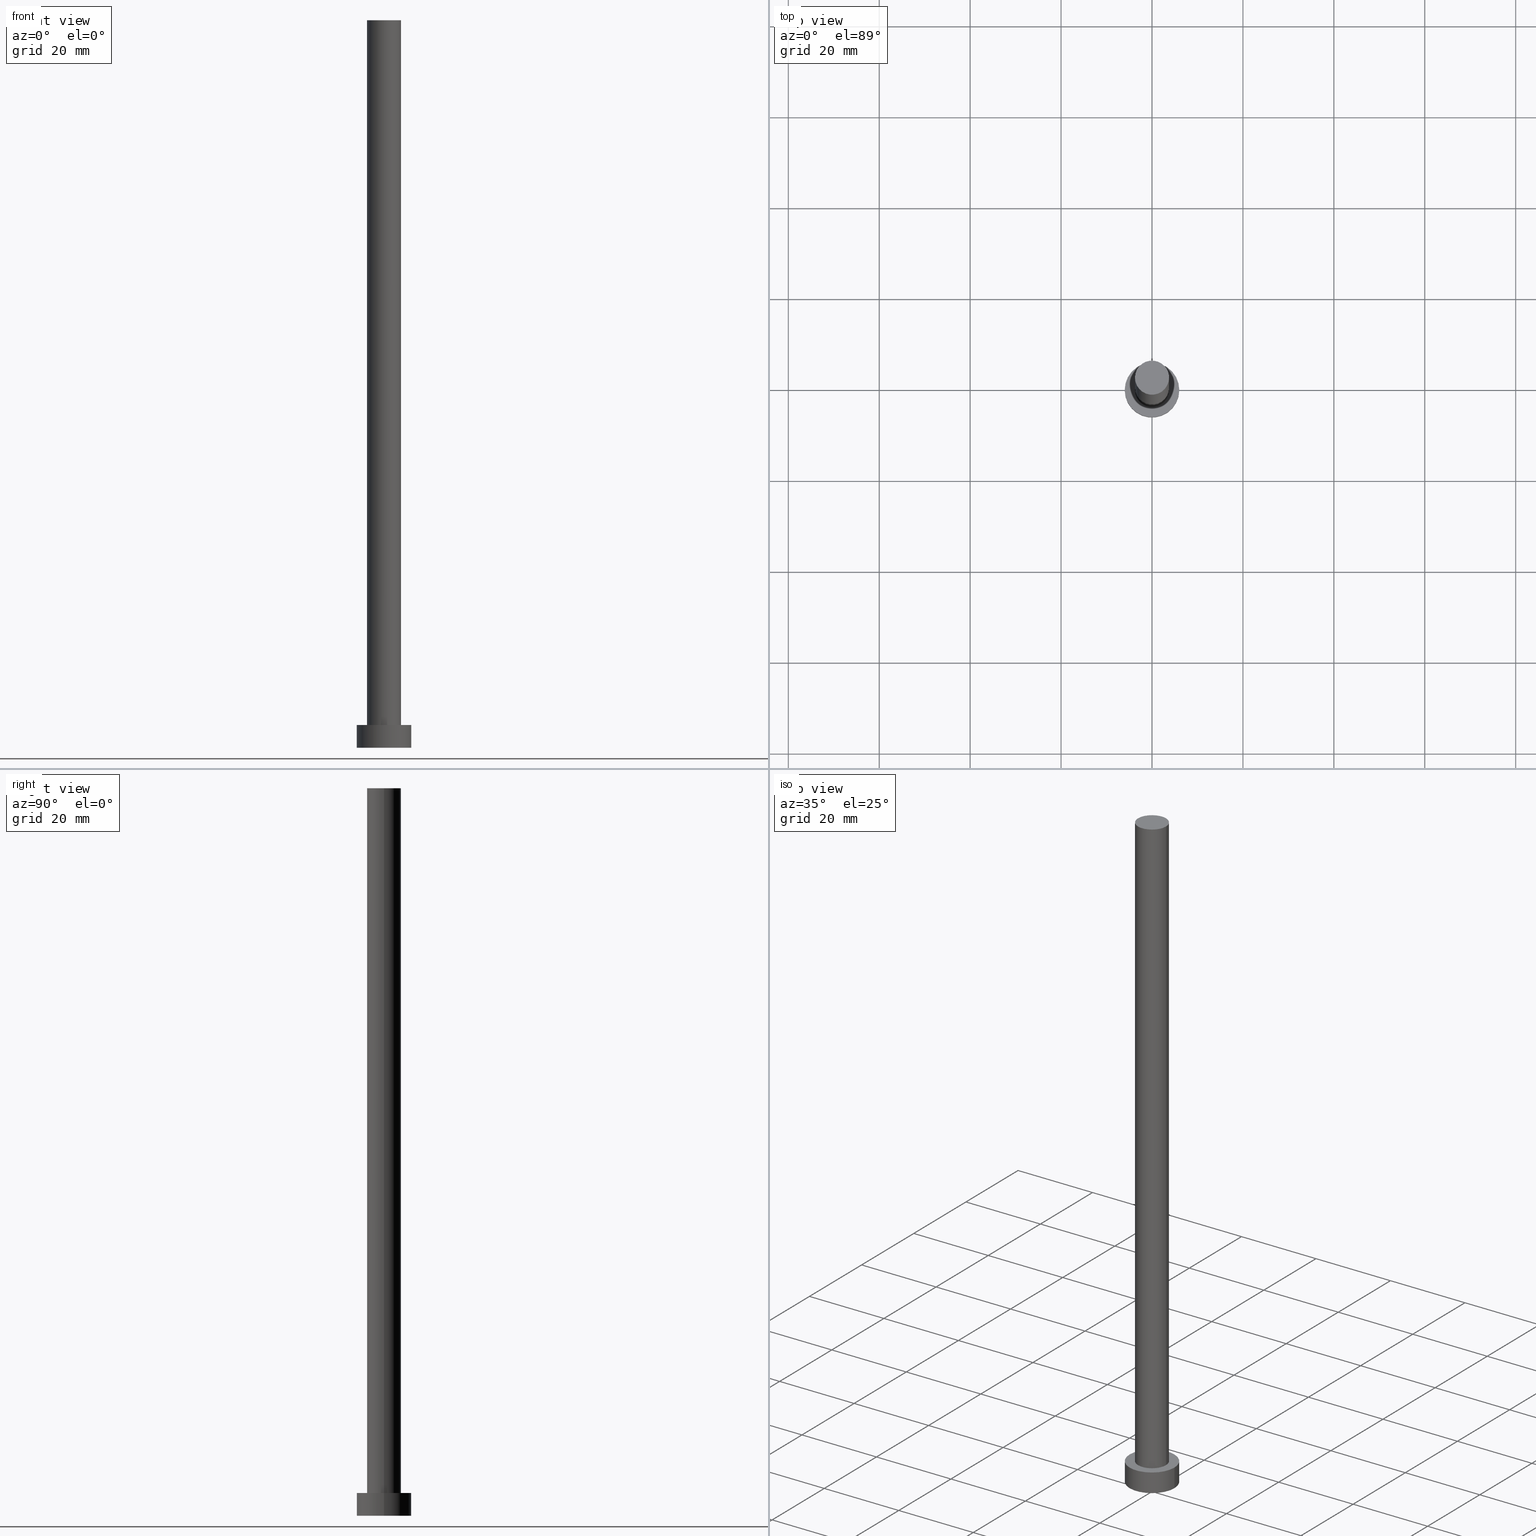
[diagram: canonical four-view strip — front | top / right | iso, engineering-drawing reading convention]
A machine part, canonical four-view strip (front | top / right | iso — engineering-drawing reading convention). The complete STEP part file that produces these views, byte-faithful:
ISO-10303-21;
HEADER;
FILE_DESCRIPTION (( 'STEP AP203' ),
    '1' );
FILE_NAME ('c519.STEP',
    '2023-02-13T13:34:51',
    ( '' ),
    ( '' ),
    'SwSTEP 2.0',
    'SolidWorks 2019',
    '' );
FILE_SCHEMA (( 'CONFIG_CONTROL_DESIGN' ));
ENDSEC;

DATA;
#1 = APPROVAL_ROLE ( '' ) ;
#2 = EDGE_CURVE ( 'NONE', #14, #13, #255, .T. ) ;
#3 = DIRECTION ( 'NONE',  ( -0.000000000000000000, -0.000000000000000000, -1.000000000000000000 ) ) ;
#4 = CARTESIAN_POINT ( 'NONE',  ( 0.000000000000000000, 0.000000000000000000, 0.000000000000000000 ) ) ;
#5 = APPROVAL_STATUS ( 'not_yet_approved' ) ;
#6 = CYLINDRICAL_SURFACE ( 'NONE', #100, 3.750000000000000000 ) ;
#7 = DIRECTION ( 'NONE',  ( -0.000000000000000000, -0.000000000000000000, -1.000000000000000000 ) ) ;
#8 = AXIS2_PLACEMENT_3D ( 'NONE', #82, #106, #244 ) ;
#9 = DIRECTION ( 'NONE',  ( 0.000000000000000000, 0.000000000000000000, 1.000000000000000000 ) ) ;
#10 = DIRECTION ( 'NONE',  ( 1.000000000000000000, 0.000000000000000000, 0.000000000000000000 ) ) ;
#11 = ORIENTED_EDGE ( 'NONE', *, *, #77, .F. ) ;
#12 = VECTOR ( 'NONE', #205, 1000.000000000000000 ) ;
#13 = VERTEX_POINT ( 'NONE', #117 ) ;
#14 = VERTEX_POINT ( 'NONE', #198 ) ;
#15 = PERSON_AND_ORGANIZATION_ROLE ( 'classification_officer' ) ;
#16 = PERSON_AND_ORGANIZATION_ROLE ( 'design_supplier' ) ;
#17 = DIRECTION ( 'NONE',  ( -1.000000000000000000, 0.000000000000000000, 0.000000000000000000 ) ) ;
#18 = DIRECTION ( 'NONE',  ( 1.000000000000000000, 0.000000000000000000, 0.000000000000000000 ) ) ;
#19 = UNCERTAINTY_MEASURE_WITH_UNIT (LENGTH_MEASURE( 1.000000000000000082E-05 ), #211, 'distance_accuracy_value', 'NONE');
#20 = APPROVAL ( #93, 'NEUR�EN�' ) ;
#21 = AXIS2_PLACEMENT_3D ( 'NONE', #109, #3, #188 ) ;
#22 = APPROVAL_STATUS ( 'not_yet_approved' ) ;
#23 = CARTESIAN_POINT ( 'NONE',  ( 6.000000000000000888, 7.347880794884120722E-16, 5.000000000000000000 ) ) ;
#24 = DATE_TIME_ROLE ( 'creation_date' ) ;
#25 = FACE_OUTER_BOUND ( 'NONE', #231, .T. ) ;
#26 = CYLINDRICAL_SURFACE ( 'NONE', #62, 3.750000000000000000 ) ;
#27 = DIRECTION ( 'NONE',  ( -1.000000000000000000, 0.000000000000000000, 0.000000000000000000 ) ) ;
#28 = FACE_OUTER_BOUND ( 'NONE', #71, .T. ) ;
#29 = VECTOR ( 'NONE', #80, 1000.000000000000000 ) ;
#30 = ORIENTED_EDGE ( 'NONE', *, *, #55, .F. ) ;
#31 = ORIENTED_EDGE ( 'NONE', *, *, #124, .F. ) ;
#32 = EDGE_LOOP ( 'NONE', ( #213, #135, #177, #67 ) ) ;
#33 = EDGE_CURVE ( 'NONE', #73, #91, #158, .T. ) ;
#34 = ADVANCED_FACE ( 'NONE', ( #95 ), #196, .T. ) ;
#35 = ORIENTED_EDGE ( 'NONE', *, *, #56, .T. ) ;
#36 = DIRECTION ( 'NONE',  ( -0.000000000000000000, -0.000000000000000000, -1.000000000000000000 ) ) ;
#37 = DIRECTION ( 'NONE',  ( 1.000000000000000000, 0.000000000000000000, 0.000000000000000000 ) ) ;
#38 = LOCAL_TIME ( 14, 34, 51.00000000000000000, #194 ) ;
#39 = ORGANIZATION ( 'NEUR�EN�', 'NEUR�EN�', '' ) ;
#40 = EDGE_CURVE ( 'NONE', #13, #14, #254, .T. ) ;
#41 = FACE_OUTER_BOUND ( 'NONE', #131, .T. ) ;
#42 = LOCAL_TIME ( 14, 34, 51.00000000000000000, #209 ) ;
#43 = PERSON_AND_ORGANIZATION ( #212, #39 ) ;
#44 = PLANE ( 'NONE',  #8 ) ;
#45 = CARTESIAN_POINT ( 'NONE',  ( -3.750000000000000000, 0.000000000000000000, 5.000000000000000000 ) ) ;
#46 = CALENDAR_DATE ( 2023, 13, 2 ) ;
#47 = DIRECTION ( 'NONE',  ( 1.000000000000000000, 0.000000000000000000, -0.000000000000000000 ) ) ;
#48 = ORIENTED_EDGE ( 'NONE', *, *, #2, .F. ) ;
#49 = PERSON_AND_ORGANIZATION ( #212, #39 ) ;
#50 = EDGE_CURVE ( 'NONE', #13, #153, #137, .T. ) ;
#51 = ORIENTED_EDGE ( 'NONE', *, *, #2, .T. ) ;
#52 = DIRECTION ( 'NONE',  ( 0.000000000000000000, 0.000000000000000000, 1.000000000000000000 ) ) ;
#53 = ORIENTED_EDGE ( 'NONE', *, *, #138, .F. ) ;
#54 = AXIS2_PLACEMENT_3D ( 'NONE', #129, #190, #10 ) ;
#55 = EDGE_CURVE ( 'NONE', #151, #73, #94, .T. ) ;
#56 = EDGE_CURVE ( 'NONE', #89, #153, #202, .T. ) ;
#57 = AXIS2_PLACEMENT_3D ( 'NONE', #102, #186, #238 ) ;
#58 = CARTESIAN_POINT ( 'NONE',  ( -6.000000000000000888, 0.000000000000000000, 0.000000000000000000 ) ) ;
#59 = DIRECTION ( 'NONE',  ( 0.000000000000000000, 0.000000000000000000, 1.000000000000000000 ) ) ;
#60 = CC_DESIGN_SECURITY_CLASSIFICATION ( #197, ( #78 ) ) ;
#61 = DIRECTION ( 'NONE',  ( -1.000000000000000000, 0.000000000000000000, 0.000000000000000000 ) ) ;
#62 = AXIS2_PLACEMENT_3D ( 'NONE', #220, #7, #61 ) ;
#63 =( NAMED_UNIT ( * ) SI_UNIT ( $, .STERADIAN. ) SOLID_ANGLE_UNIT ( ) );
#64 = COORDINATED_UNIVERSAL_TIME_OFFSET ( 1, 0, .AHEAD. ) ;
#65 = CARTESIAN_POINT ( 'NONE',  ( 0.000000000000000000, 0.000000000000000000, 5.000000000000000000 ) ) ;
#66 = LOCAL_TIME ( 14, 34, 51.00000000000000000, #185 ) ;
#67 = ORIENTED_EDGE ( 'NONE', *, *, #142, .F. ) ;
#68 = APPROVAL_ROLE ( '' ) ;
#69 = ORIENTED_EDGE ( 'NONE', *, *, #193, .T. ) ;
#70 = DIRECTION ( 'NONE',  ( -0.000000000000000000, -0.000000000000000000, -1.000000000000000000 ) ) ;
#71 = EDGE_LOOP ( 'NONE', ( #69, #248 ) ) ;
#72 = CIRCLE ( 'NONE', #143, 6.000000000000000888 ) ;
#73 = VERTEX_POINT ( 'NONE', #242 ) ;
#74 = CIRCLE ( 'NONE', #221, 6.000000000000000888 ) ;
#75 = CC_DESIGN_PERSON_AND_ORGANIZATION_ASSIGNMENT ( #43, #206, ( #122 ) ) ;
#76 = CC_DESIGN_APPROVAL ( #173, ( #122 ) ) ;
#77 = EDGE_CURVE ( 'NONE', #252, #91, #146, .T. ) ;
#78 = PRODUCT_DEFINITION_FORMATION_WITH_SPECIFIED_SOURCE ( 'LIBOVOLN�', '', #170, .NOT_KNOWN. ) ;
#79 =( GEOMETRIC_REPRESENTATION_CONTEXT ( 3 ) GLOBAL_UNCERTAINTY_ASSIGNED_CONTEXT ( ( #19 ) ) GLOBAL_UNIT_ASSIGNED_CONTEXT ( ( #211, #149, #63 ) ) REPRESENTATION_CONTEXT ( 'NONE', 'WORKASPACE' ) );
#80 = DIRECTION ( 'NONE',  ( -0.000000000000000000, -0.000000000000000000, -1.000000000000000000 ) ) ;
#81 = DATE_AND_TIME ( #243, #66 ) ;
#82 = CARTESIAN_POINT ( 'NONE',  ( 0.000000000000000000, 0.000000000000000000, 0.000000000000000000 ) ) ;
#83 = CARTESIAN_POINT ( 'NONE',  ( 3.750000000000000000, 4.592425496802573972E-16, 5.000000000000000000 ) ) ;
#84 = DATE_AND_TIME ( #46, #150 ) ;
#85 = DIRECTION ( 'NONE',  ( 0.000000000000000000, 0.000000000000000000, 1.000000000000000000 ) ) ;
#86 = CARTESIAN_POINT ( 'NONE',  ( 0.000000000000000000, 0.000000000000000000, 5.000000000000000000 ) ) ;
#87 = ADVANCED_FACE ( 'NONE', ( #224 ), #26, .T. ) ;
#88 = APPLICATION_PROTOCOL_DEFINITION ( 'international standard', 'config_control_design', 1994, #111 ) ;
#89 = VERTEX_POINT ( 'NONE', #45 ) ;
#90 = APPROVAL_DATE_TIME ( #133, #20 ) ;
#91 = VERTEX_POINT ( 'NONE', #58 ) ;
#92 = COORDINATED_UNIVERSAL_TIME_OFFSET ( 1, 0, .AHEAD. ) ;
#93 = APPROVAL_STATUS ( 'not_yet_approved' ) ;
#94 = LINE ( 'NONE', #253, #203 ) ;
#95 = FACE_OUTER_BOUND ( 'NONE', #249, .T. ) ;
#96 = VECTOR ( 'NONE', #36, 1000.000000000000000 ) ;
#97 = CLOSED_SHELL ( 'NONE', ( #87, #34, #155, #200, #174, #226, #201 ) ) ;
#98 = APPLICATION_CONTEXT ( 'configuration controlled 3d designs of mechanical parts and assemblies' ) ;
#99 = ADVANCED_BREP_SHAPE_REPRESENTATION ( 'c519', ( #237, #184 ), #79 ) ;
#100 = AXIS2_PLACEMENT_3D ( 'NONE', #108, #130, #27 ) ;
#101 = APPROVAL_DATE_TIME ( #187, #173 ) ;
#102 = CARTESIAN_POINT ( 'NONE',  ( 0.000000000000000000, 0.000000000000000000, 5.000000000000000000 ) ) ;
#103 = MECHANICAL_CONTEXT ( 'NONE', #111, 'mechanical' ) ;
#104 = CC_DESIGN_APPROVAL ( #154, ( #78 ) ) ;
#105 = PERSON_AND_ORGANIZATION ( #212, #39 ) ;
#106 = DIRECTION ( 'NONE',  ( 0.000000000000000000, 0.000000000000000000, 1.000000000000000000 ) ) ;
#107 = DIRECTION ( 'NONE',  ( 1.000000000000000000, 0.000000000000000000, 0.000000000000000000 ) ) ;
#108 = CARTESIAN_POINT ( 'NONE',  ( 0.000000000000000000, 0.000000000000000000, 160.0000000000000000 ) ) ;
#109 = CARTESIAN_POINT ( 'NONE',  ( 0.000000000000000000, 0.000000000000000000, 5.000000000000000000 ) ) ;
#110 = AXIS2_PLACEMENT_3D ( 'NONE', #176, #180, #18 ) ;
#111 = APPLICATION_CONTEXT ( 'configuration controlled 3d designs of mechanical parts and assemblies' ) ;
#112 = ORIENTED_EDGE ( 'NONE', *, *, #50, .F. ) ;
#113 = EDGE_LOOP ( 'NONE', ( #51, #132 ) ) ;
#114 = CC_DESIGN_PERSON_AND_ORGANIZATION_ASSIGNMENT ( #105, #16, ( #78 ) ) ;
#115 = ORIENTED_EDGE ( 'NONE', *, *, #219, .F. ) ;
#116 = DIRECTION ( 'NONE',  ( 0.000000000000000000, 0.000000000000000000, 1.000000000000000000 ) ) ;
#117 = CARTESIAN_POINT ( 'NONE',  ( 3.750000000000000000, 4.592425496802573972E-16, 160.0000000000000000 ) ) ;
#118 = APPROVAL_PERSON_ORGANIZATION ( #247, #20, #68 ) ;
#119 = AXIS2_PLACEMENT_3D ( 'NONE', #4, #121, #107 ) ;
#120 = CIRCLE ( 'NONE', #119, 6.000000000000000888 ) ;
#121 = DIRECTION ( 'NONE',  ( 0.000000000000000000, 0.000000000000000000, 1.000000000000000000 ) ) ;
#122 = PRODUCT_DEFINITION ( 'NEZN�M�', '', #78, #140 ) ;
#123 = CC_DESIGN_APPROVAL ( #20, ( #197 ) ) ;
#124 = EDGE_CURVE ( 'NONE', #151, #252, #72, .T. ) ;
#125 = APPLICATION_PROTOCOL_DEFINITION ( 'international standard', 'config_control_design', 1994, #98 ) ;
#126 = CARTESIAN_POINT ( 'NONE',  ( 0.000000000000000000, 0.000000000000000000, 5.000000000000000000 ) ) ;
#127 = CYLINDRICAL_SURFACE ( 'NONE', #21, 6.000000000000000888 ) ;
#128 = APPROVAL_DATE_TIME ( #84, #154 ) ;
#129 = CARTESIAN_POINT ( 'NONE',  ( 0.000000000000000000, 0.000000000000000000, 5.000000000000000000 ) ) ;
#130 = DIRECTION ( 'NONE',  ( -0.000000000000000000, -0.000000000000000000, -1.000000000000000000 ) ) ;
#131 = EDGE_LOOP ( 'NONE', ( #30, #178, #192, #191 ) ) ;
#132 = ORIENTED_EDGE ( 'NONE', *, *, #40, .T. ) ;
#133 = DATE_AND_TIME ( #250, #38 ) ;
#134 = ORIENTED_EDGE ( 'NONE', *, *, #55, .T. ) ;
#135 = ORIENTED_EDGE ( 'NONE', *, *, #50, .T. ) ;
#136 = DATE_AND_TIME ( #195, #229 ) ;
#137 = LINE ( 'NONE', #216, #96 ) ;
#138 = EDGE_CURVE ( 'NONE', #91, #73, #120, .T. ) ;
#139 = CARTESIAN_POINT ( 'NONE',  ( 0.000000000000000000, 0.000000000000000000, 160.0000000000000000 ) ) ;
#140 = DESIGN_CONTEXT ( 'detailed design', #98, 'design' ) ;
#141 = DIRECTION ( 'NONE',  ( 0.000000000000000000, 0.000000000000000000, 1.000000000000000000 ) ) ;
#142 = EDGE_CURVE ( 'NONE', #14, #89, #160, .T. ) ;
#143 = AXIS2_PLACEMENT_3D ( 'NONE', #86, #141, #208 ) ;
#144 = PERSON_AND_ORGANIZATION_ROLE ( 'creator' ) ;
#145 = PLANE ( 'NONE',  #181 ) ;
#146 = LINE ( 'NONE', #189, #29 ) ;
#147 = APPROVAL_ROLE ( '' ) ;
#148 = FACE_OUTER_BOUND ( 'NONE', #113, .T. ) ;
#149 =( NAMED_UNIT ( * ) PLANE_ANGLE_UNIT ( ) SI_UNIT ( $, .RADIAN. ) );
#150 = LOCAL_TIME ( 14, 34, 51.00000000000000000, #64 ) ;
#151 = VERTEX_POINT ( 'NONE', #23 ) ;
#152 = SHAPE_DEFINITION_REPRESENTATION ( #251, #99 ) ;
#153 = VERTEX_POINT ( 'NONE', #83 ) ;
#154 = APPROVAL ( #5, 'NEUR�EN�' ) ;
#155 = ADVANCED_FACE ( 'NONE', ( #41 ), #127, .T. ) ;
#156 = CARTESIAN_POINT ( 'NONE',  ( 0.000000000000000000, 0.000000000000000000, 5.000000000000000000 ) ) ;
#157 = DIRECTION ( 'NONE',  ( -0.000000000000000000, -0.000000000000000000, -1.000000000000000000 ) ) ;
#158 = CIRCLE ( 'NONE', #110, 6.000000000000000888 ) ;
#159 = APPROVAL_PERSON_ORGANIZATION ( #165, #173, #1 ) ;
#160 = LINE ( 'NONE', #163, #12 ) ;
#161 = PERSON_AND_ORGANIZATION ( #212, #39 ) ;
#162 = DIRECTION ( 'NONE',  ( 1.000000000000000000, 0.000000000000000000, 0.000000000000000000 ) ) ;
#163 = CARTESIAN_POINT ( 'NONE',  ( -3.750000000000000000, 0.000000000000000000, 160.0000000000000000 ) ) ;
#164 = CARTESIAN_POINT ( 'NONE',  ( -6.000000000000000888, 0.000000000000000000, 5.000000000000000000 ) ) ;
#165 = PERSON_AND_ORGANIZATION ( #212, #39 ) ;
#166 = PLANE ( 'NONE',  #215 ) ;
#167 = CC_DESIGN_DATE_AND_TIME_ASSIGNMENT ( #136, #175, ( #197 ) ) ;
#168 = ORIENTED_EDGE ( 'NONE', *, *, #33, .F. ) ;
#169 = CIRCLE ( 'NONE', #54, 3.750000000000000000 ) ;
#170 = PRODUCT ( 'c519', 'c519', '', ( #103 ) ) ;
#171 = SECURITY_CLASSIFICATION_LEVEL ( 'unclassified' ) ;
#172 = EDGE_LOOP ( 'NONE', ( #53, #168 ) ) ;
#173 = APPROVAL ( #22, 'NEUR�EN�' ) ;
#174 = ADVANCED_FACE ( 'NONE', ( #228 ), #44, .F. ) ;
#175 = DATE_TIME_ROLE ( 'classification_date' ) ;
#176 = CARTESIAN_POINT ( 'NONE',  ( 0.000000000000000000, 0.000000000000000000, 0.000000000000000000 ) ) ;
#177 = ORIENTED_EDGE ( 'NONE', *, *, #219, .T. ) ;
#178 = ORIENTED_EDGE ( 'NONE', *, *, #193, .F. ) ;
#179 = AXIS2_PLACEMENT_3D ( 'NONE', #139, #116, #37 ) ;
#180 = DIRECTION ( 'NONE',  ( 0.000000000000000000, 0.000000000000000000, 1.000000000000000000 ) ) ;
#181 = AXIS2_PLACEMENT_3D ( 'NONE', #210, #207, #223 ) ;
#182 = AXIS2_PLACEMENT_3D ( 'NONE', #233, #52, #234 ) ;
#183 = APPROVAL_PERSON_ORGANIZATION ( #227, #154, #147 ) ;
#184 = AXIS2_PLACEMENT_3D ( 'NONE', #245, #9, #225 ) ;
#185 = COORDINATED_UNIVERSAL_TIME_OFFSET ( 1, 0, .AHEAD. ) ;
#186 = DIRECTION ( 'NONE',  ( 0.000000000000000000, 0.000000000000000000, 1.000000000000000000 ) ) ;
#187 = DATE_AND_TIME ( #239, #42 ) ;
#188 = DIRECTION ( 'NONE',  ( -1.000000000000000000, 0.000000000000000000, 0.000000000000000000 ) ) ;
#189 = CARTESIAN_POINT ( 'NONE',  ( -6.000000000000000888, 0.000000000000000000, 5.000000000000000000 ) ) ;
#190 = DIRECTION ( 'NONE',  ( 0.000000000000000000, 0.000000000000000000, 1.000000000000000000 ) ) ;
#191 = ORIENTED_EDGE ( 'NONE', *, *, #138, .T. ) ;
#192 = ORIENTED_EDGE ( 'NONE', *, *, #77, .T. ) ;
#193 = EDGE_CURVE ( 'NONE', #252, #151, #74, .T. ) ;
#194 = COORDINATED_UNIVERSAL_TIME_OFFSET ( 1, 0, .AHEAD. ) ;
#195 = CALENDAR_DATE ( 2023, 13, 2 ) ;
#196 = CYLINDRICAL_SURFACE ( 'NONE', #235, 6.000000000000000888 ) ;
#197 = SECURITY_CLASSIFICATION ( '', '', #171 ) ;
#198 = CARTESIAN_POINT ( 'NONE',  ( -3.750000000000000000, 0.000000000000000000, 160.0000000000000000 ) ) ;
#199 = PRODUCT_RELATED_PRODUCT_CATEGORY ( 'detail', '', ( #170 ) ) ;
#200 = ADVANCED_FACE ( 'NONE', ( #241, #28 ), #166, .T. ) ;
#201 = ADVANCED_FACE ( 'NONE', ( #148 ), #145, .T. ) ;
#202 = CIRCLE ( 'NONE', #57, 3.750000000000000000 ) ;
#203 = VECTOR ( 'NONE', #157, 1000.000000000000000 ) ;
#204 = PERSON_AND_ORGANIZATION_ROLE ( 'design_owner' ) ;
#205 = DIRECTION ( 'NONE',  ( -0.000000000000000000, -0.000000000000000000, -1.000000000000000000 ) ) ;
#206 = PERSON_AND_ORGANIZATION_ROLE ( 'creator' ) ;
#207 = DIRECTION ( 'NONE',  ( 0.000000000000000000, 0.000000000000000000, 1.000000000000000000 ) ) ;
#208 = DIRECTION ( 'NONE',  ( 1.000000000000000000, 0.000000000000000000, 0.000000000000000000 ) ) ;
#209 = COORDINATED_UNIVERSAL_TIME_OFFSET ( 1, 0, .AHEAD. ) ;
#210 = CARTESIAN_POINT ( 'NONE',  ( 0.000000000000000000, 0.000000000000000000, 160.0000000000000000 ) ) ;
#211 =( LENGTH_UNIT ( ) NAMED_UNIT ( * ) SI_UNIT ( .MILLI., .METRE. ) );
#212 = PERSON ( 'NEUR�EN�', 'NEUR�EN�', 'NEUR�EN�', ('NEUR�EN�'), ('NEUR�EN�'), ('NEUR�EN�') ) ;
#213 = ORIENTED_EDGE ( 'NONE', *, *, #40, .F. ) ;
#214 = EDGE_LOOP ( 'NONE', ( #246, #115 ) ) ;
#215 = AXIS2_PLACEMENT_3D ( 'NONE', #65, #59, #47 ) ;
#216 = CARTESIAN_POINT ( 'NONE',  ( 3.750000000000000000, 4.592425496802573972E-16, 160.0000000000000000 ) ) ;
#217 = ORIENTED_EDGE ( 'NONE', *, *, #33, .T. ) ;
#218 = CC_DESIGN_PERSON_AND_ORGANIZATION_ASSIGNMENT ( #222, #204, ( #170 ) ) ;
#219 = EDGE_CURVE ( 'NONE', #153, #89, #169, .T. ) ;
#220 = CARTESIAN_POINT ( 'NONE',  ( 0.000000000000000000, 0.000000000000000000, 160.0000000000000000 ) ) ;
#221 = AXIS2_PLACEMENT_3D ( 'NONE', #126, #85, #162 ) ;
#222 = PERSON_AND_ORGANIZATION ( #212, #39 ) ;
#223 = DIRECTION ( 'NONE',  ( 1.000000000000000000, 0.000000000000000000, -0.000000000000000000 ) ) ;
#224 = FACE_OUTER_BOUND ( 'NONE', #32, .T. ) ;
#225 = DIRECTION ( 'NONE',  ( 1.000000000000000000, 0.000000000000000000, 0.000000000000000000 ) ) ;
#226 = ADVANCED_FACE ( 'NONE', ( #25 ), #6, .T. ) ;
#227 = PERSON_AND_ORGANIZATION ( #212, #39 ) ;
#228 = FACE_OUTER_BOUND ( 'NONE', #172, .T. ) ;
#229 = LOCAL_TIME ( 14, 34, 51.00000000000000000, #92 ) ;
#230 = ORIENTED_EDGE ( 'NONE', *, *, #142, .T. ) ;
#231 = EDGE_LOOP ( 'NONE', ( #112, #48, #230, #35 ) ) ;
#232 = CC_DESIGN_PERSON_AND_ORGANIZATION_ASSIGNMENT ( #49, #15, ( #197 ) ) ;
#233 = CARTESIAN_POINT ( 'NONE',  ( 0.000000000000000000, 0.000000000000000000, 160.0000000000000000 ) ) ;
#234 = DIRECTION ( 'NONE',  ( 1.000000000000000000, 0.000000000000000000, 0.000000000000000000 ) ) ;
#235 = AXIS2_PLACEMENT_3D ( 'NONE', #156, #70, #17 ) ;
#236 = CC_DESIGN_PERSON_AND_ORGANIZATION_ASSIGNMENT ( #161, #144, ( #78 ) ) ;
#237 = MANIFOLD_SOLID_BREP ( 'P�idat vysunut�m3', #97 ) ;
#238 = DIRECTION ( 'NONE',  ( 1.000000000000000000, 0.000000000000000000, 0.000000000000000000 ) ) ;
#239 = CALENDAR_DATE ( 2023, 13, 2 ) ;
#240 = CC_DESIGN_DATE_AND_TIME_ASSIGNMENT ( #81, #24, ( #122 ) ) ;
#241 = FACE_BOUND ( 'NONE', #214, .T. ) ;
#242 = CARTESIAN_POINT ( 'NONE',  ( 6.000000000000000888, 7.347880794884120722E-16, 0.000000000000000000 ) ) ;
#243 = CALENDAR_DATE ( 2023, 13, 2 ) ;
#244 = DIRECTION ( 'NONE',  ( 1.000000000000000000, 0.000000000000000000, -0.000000000000000000 ) ) ;
#245 = CARTESIAN_POINT ( 'NONE',  ( 0.000000000000000000, 0.000000000000000000, 0.000000000000000000 ) ) ;
#246 = ORIENTED_EDGE ( 'NONE', *, *, #56, .F. ) ;
#247 = PERSON_AND_ORGANIZATION ( #212, #39 ) ;
#248 = ORIENTED_EDGE ( 'NONE', *, *, #124, .T. ) ;
#249 = EDGE_LOOP ( 'NONE', ( #31, #134, #217, #11 ) ) ;
#250 = CALENDAR_DATE ( 2023, 13, 2 ) ;
#251 = PRODUCT_DEFINITION_SHAPE ( 'NONE', 'NONE',  #122 ) ;
#252 = VERTEX_POINT ( 'NONE', #164 ) ;
#253 = CARTESIAN_POINT ( 'NONE',  ( 6.000000000000000888, 7.347880794884120722E-16, 5.000000000000000000 ) ) ;
#254 = CIRCLE ( 'NONE', #182, 3.750000000000000000 ) ;
#255 = CIRCLE ( 'NONE', #179, 3.750000000000000000 ) ;
ENDSEC;
END-ISO-10303-21;
